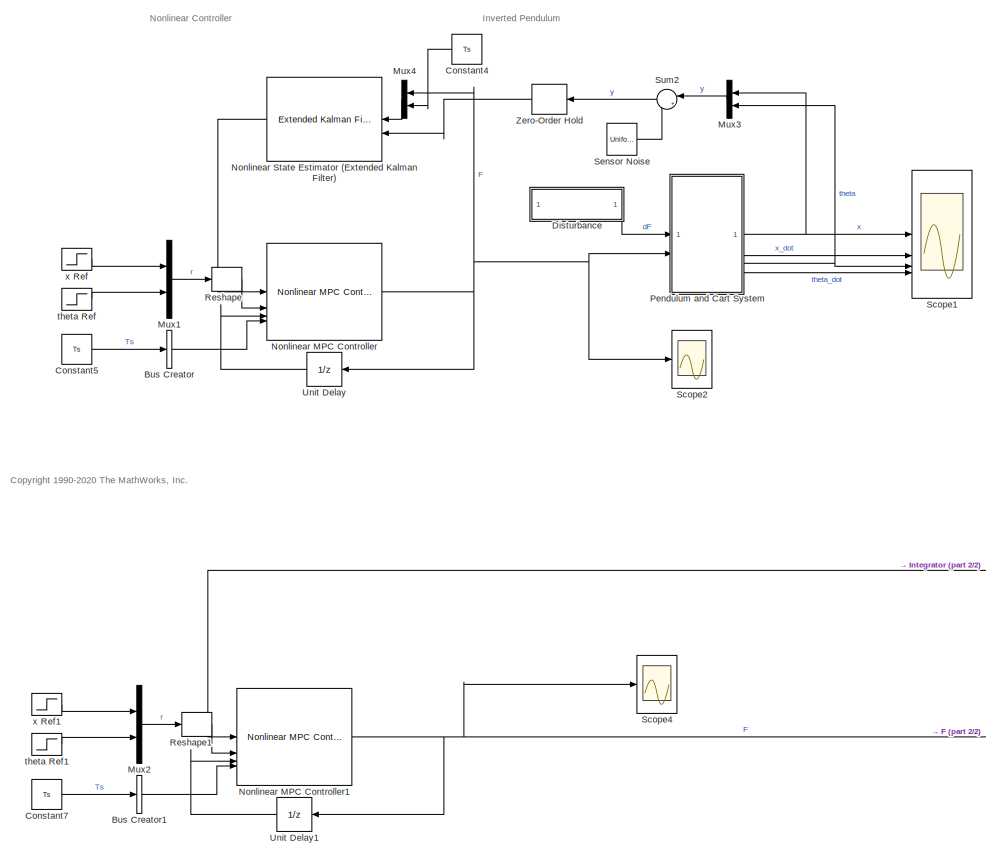
[diagram: root canvas - part 1/2, left side, full height]
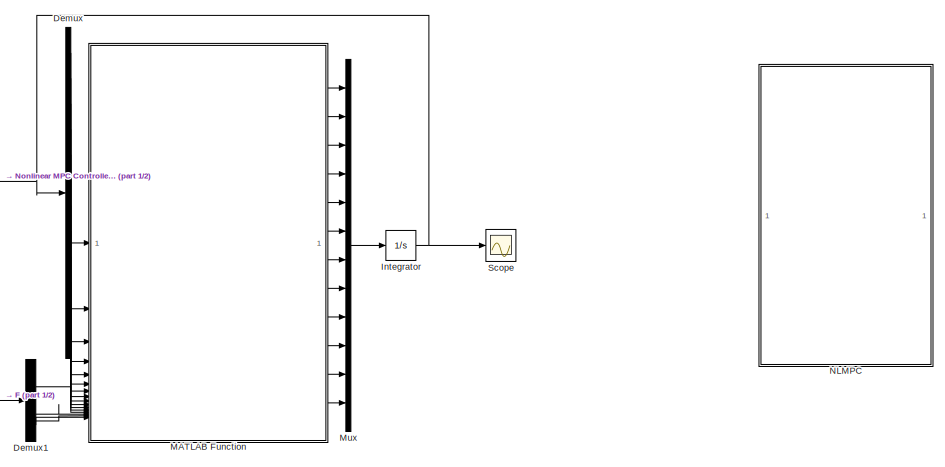
[diagram: root canvas - part 2/2, bottom right region]
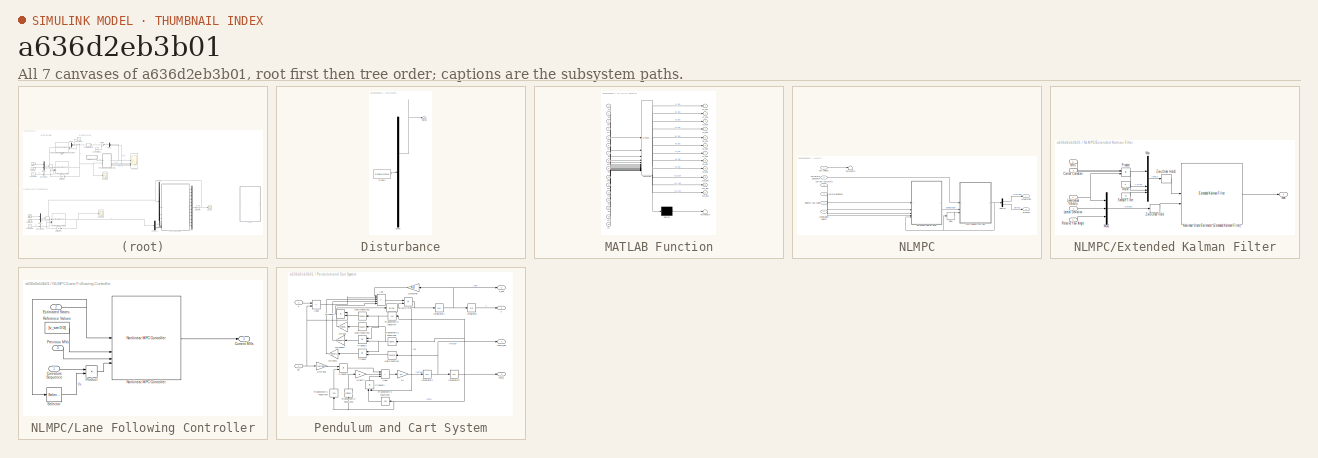
[diagram: thumbnail index - all 7 canvases of the model, root first then tree order]
MODEL slx_a636d2eb3b01
KIND model
CONFIG AbsTol = auto
CONFIG EnableMultiTasking = off
CONFIG FixedStep = auto
CONFIG MaxStep = auto
CONFIG MinStep = auto
CONFIG RelTol = 1e-3
CONFIG SampleTimeConstraint = Unconstrained
CONFIG SolverName = VariableStepAuto
CONFIG StartTime = 0.0
CONFIG StopTime = 10.0
BLOCK [BusCreator] Bus Creator
  DisplayOption = bar
  InheritFromInputs = off
  Inputs = 1
  NonVirtualBus = on
  OutDataTypeStr = Bus: myBusObject
BLOCK [BusCreator] Bus Creator1
  DisplayOption = bar
  InheritFromInputs = off
  Inputs = 1
  NonVirtualBus = on
  OutDataTypeStr = Bus: myBusObject
BLOCK [Constant] Constant4
  Value = Ts
BLOCK [Constant] Constant5
  Value = Ts
BLOCK [Constant] Constant7
  Value = Ts
BLOCK [Demux] Demux
  Outputs = 12
BLOCK [Demux] Demux1
BLOCK [SubSystem] Disturbance
  ClipboardFcn = sigbuilder_block('clipboard');
  CloseFcn = sigbuilder_block('close');
  ContinueFcn = sigbuilder_block('continue');
  CopyFcn = sigbuilder_block('copy');
  DeleteFcn = sigbuilder_block('delete');
  LoadFcn = sigbuilder_block('load');
  MaskHideContents = on
  ModelCloseFcn = sigbuilder_block('modelClose');
  NameChangeFcn = sigbuilder_block('namechange');
  NameLocation = top
  OpenFcn = sigbuilder_block('open',[237 156.75 551.25 355.5 ]);
  PauseFcn = sigbuilder_block('pause');
  PreSaveFcn = sigbuilder_block('preSave');
  StartFcn = sigbuilder_block('start');
  StopFcn = sigbuilder_block('stop');
  Tag = STV Subsys
BLOCK [Demux] Disturbance/Demux
  DisplayOption = none
  Outputs = 1
  Tag = STV Demux
BLOCK [FromWorkspace] Disturbance/FromWs
  Tag = STV FromWs
  VariableName = tuvar
BLOCK [Outport] Disturbance/Signal 1
  Tag = STV Outport
  VectorParamsAs1DForOutWhenUnconnected = off
BLOCK [Integrator] Integrator
  InitialCondition = [0;0;0;0;0;0;0;0;0;0;0;0]
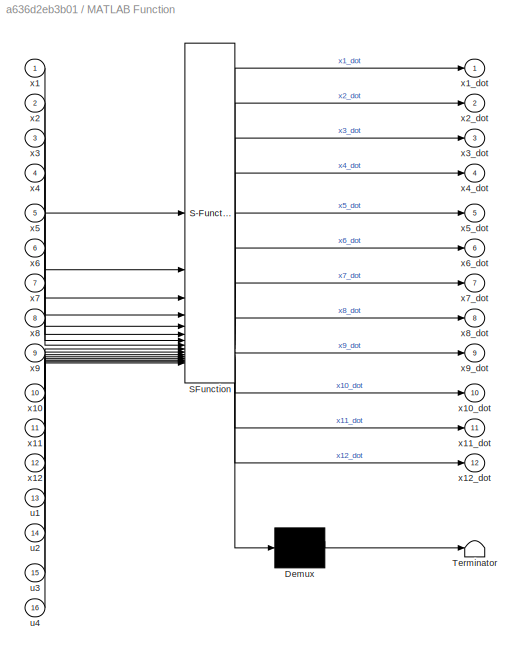
BLOCK [SubSystem] MATLAB Function
  ErrorFcn = Stateflow.Translate.translate
  PermitHierarchicalResolution = ExplicitOnly
  SFBlockType = MATLAB Function
  TreatAsAtomicUnit = on
BLOCK [Demux] MATLAB Function/ Demux 
  Outputs = 1
BLOCK [S-Function] MATLAB Function/ SFunction 
  EnableBusSupport = off
  FunctionName = sf_sfun
  PortCounts = [16 13]
  SFcnIsStateOwnerBlock = off
  SFunctionDeploymentMode = off
  Tag = Stateflow S-Function 2
BLOCK [Terminator] MATLAB Function/ Terminator 
BLOCK [Inport] MATLAB Function/u1
  Port = 13
BLOCK [Inport] MATLAB Function/u2
  Port = 14
BLOCK [Inport] MATLAB Function/u3
  Port = 15
BLOCK [Inport] MATLAB Function/u4
  Port = 16
BLOCK [Inport] MATLAB Function/x1
BLOCK [Inport] MATLAB Function/x10
  Port = 10
BLOCK [Outport] MATLAB Function/x10_dot
  Port = 10
BLOCK [Inport] MATLAB Function/x11
  Port = 11
BLOCK [Outport] MATLAB Function/x11_dot
  Port = 11
BLOCK [Inport] MATLAB Function/x12
  Port = 12
BLOCK [Outport] MATLAB Function/x12_dot
  Port = 12
BLOCK [Outport] MATLAB Function/x1_dot
BLOCK [Inport] MATLAB Function/x2
  Port = 2
BLOCK [Outport] MATLAB Function/x2_dot
  Port = 2
BLOCK [Inport] MATLAB Function/x3
  Port = 3
BLOCK [Outport] MATLAB Function/x3_dot
  Port = 3
BLOCK [Inport] MATLAB Function/x4
  Port = 4
BLOCK [Outport] MATLAB Function/x4_dot
  Port = 4
BLOCK [Inport] MATLAB Function/x5
  Port = 5
BLOCK [Outport] MATLAB Function/x5_dot
  Port = 5
BLOCK [Inport] MATLAB Function/x6
  Port = 6
BLOCK [Outport] MATLAB Function/x6_dot
  Port = 6
BLOCK [Inport] MATLAB Function/x7
  Port = 7
BLOCK [Outport] MATLAB Function/x7_dot
  Port = 7
BLOCK [Inport] MATLAB Function/x8
  Port = 8
BLOCK [Outport] MATLAB Function/x8_dot
  Port = 8
BLOCK [Inport] MATLAB Function/x9
  Port = 9
BLOCK [Outport] MATLAB Function/x9_dot
  Port = 9
BLOCK [Mux] Mux
  DisplayOption = bar
  Inputs = 12
BLOCK [Mux] Mux1
  DisplayOption = bar
  Inputs = 2
BLOCK [Mux] Mux2
  DisplayOption = bar
  Inputs = 2
BLOCK [Mux] Mux3
  DisplayOption = bar
  Inputs = 2
  NameLocation = top
BLOCK [Mux] Mux4
  DisplayOption = bar
  Inputs = 2
  NameLocation = top
BLOCK [SubSystem] NLMPC
  VariantControl = controller_type ==1
BLOCK [Outport] NLMPC/Acceleration
  VectorParamsAs1DForOutWhenUnconnected = off
BLOCK [Inport] NLMPC/Current Curvature
  Port = 3
BLOCK [Inport] NLMPC/Curvature Sequence
  Port = 2
BLOCK [Delay] NLMPC/Delay
  DelayLength = 1
  InitialCondition = [0.2 0.3]
  InputPortMap = u0
BLOCK [Demux] NLMPC/Demux
  Outputs = 2
BLOCK [SubSystem] NLMPC/Extended Kalman Filter
BLOCK [Inport] NLMPC/Extended Kalman Filter/Current Curvature
BLOCK [Inport] NLMPC/Extended Kalman Filter/Lateral Deviation
  Port = 2
BLOCK [Inport] NLMPC/Extended Kalman Filter/Longitudinal Velocity
  Port = 4
BLOCK [Inport] NLMPC/Extended Kalman Filter/MVs
  Port = 5
BLOCK [Mux] NLMPC/Extended Kalman Filter/Mux
  DisplayOption = bar
BLOCK [Mux] NLMPC/Extended Kalman Filter/Mux1
  DisplayOption = bar
  Inputs = 3
BLOCK [Constant] NLMPC/Extended Kalman Filter/Noise
  Value = 0
BLOCK [Reference] NLMPC/Extended Kalman Filter/Nonlinear State Estimator (Extended Kalman Filter)  REF=sharedTrackingLibrary/Extended Kalman Filter
  NameLocation = top
  SourceBlock = sharedTrackingLibrary/Extended Kalman Filter
  SourceType = Extended Kalman Filter
BLOCK [Product] NLMPC/Extended Kalman Filter/Product
BLOCK [Inport] NLMPC/Extended Kalman Filter/Relative Yaw Angle
  Port = 3
BLOCK [Constant] NLMPC/Extended Kalman Filter/Sample Time
  Value = Ts
BLOCK [ZeroOrderHold] NLMPC/Extended Kalman Filter/Zero-Order Hold
  NameLocation = top
  SampleTime = Ts
BLOCK [ZeroOrderHold] NLMPC/Extended Kalman Filter/Zero-Order Hold1
  NameLocation = top
  SampleTime = Ts
BLOCK [Outport] NLMPC/Extended Kalman Filter/xhat
  VectorParamsAs1DForOutWhenUnconnected = off
BLOCK [SubSystem] NLMPC/Lane Following Controller
BLOCK [Outport] NLMPC/Lane Following Controller/Current MVs
  VectorParamsAs1DForOutWhenUnconnected = off
BLOCK [Inport] NLMPC/Lane Following Controller/Curvature Sequence
BLOCK [Inport] NLMPC/Lane Following Controller/Estimated States
  Port = 2
BLOCK [Reference] NLMPC/Lane Following Controller/Nonlinear MPC Controller  REF=mpclib/Nonlinear MPC Controller  (lib defined in mdl_ae329e0e0455)
  SCDEnableBlockLinearizationSpecification = on
  SourceBlock = mpclib/Nonlinear MPC Controller
  SourceType = NonlinearMPC
BLOCK [Inport] NLMPC/Lane Following Controller/Previous MVs
  Port = 3
BLOCK [Product] NLMPC/Lane Following Controller/Product
BLOCK [Constant] NLMPC/Lane Following Controller/Reference Values
  Value = [v_set 0 0]
  VectorParams1D = off
BLOCK [Selector] NLMPC/Lane Following Controller/Selector
  IndexOptions = Index vector (dialog)
  Indices = [3]
  InputPortWidth = 7
  OutputSizes = 1
BLOCK [Inport] NLMPC/Lateral Deviation
  Port = 4
BLOCK [Inport] NLMPC/Longitudinal Velocity
  Port = 6
BLOCK [Inport] NLMPC/Relative Yaw Angle
  Port = 5
BLOCK [Inport] NLMPC/Set velocity
BLOCK [Outport] NLMPC/Steering
  Port = 2
  VectorParamsAs1DForOutWhenUnconnected = off
BLOCK [Terminator] NLMPC/Terminator
BLOCK [Reference] Nonlinear MPC Controller  REF=mpclib/Nonlinear MPC Controller  (lib defined in mdl_ae329e0e0455)
  SCDEnableBlockLinearizationSpecification = on
  SourceBlock = mpclib/Nonlinear MPC Controller
  SourceType = NonlinearMPC
BLOCK [Reference] Nonlinear MPC Controller1  REF=mpclib/Nonlinear MPC Controller  (lib defined in mdl_ae329e0e0455)
  SCDEnableBlockLinearizationSpecification = on
  SourceBlock = mpclib/Nonlinear MPC Controller
  SourceType = NonlinearMPC
BLOCK [Reference] Nonlinear State Estimator (Extended Kalman Filter)  REF=sharedTrackingLibrary/Extended Kalman Filter
  SourceBlock = sharedTrackingLibrary/Extended Kalman Filter
  SourceType = Extended Kalman Filter
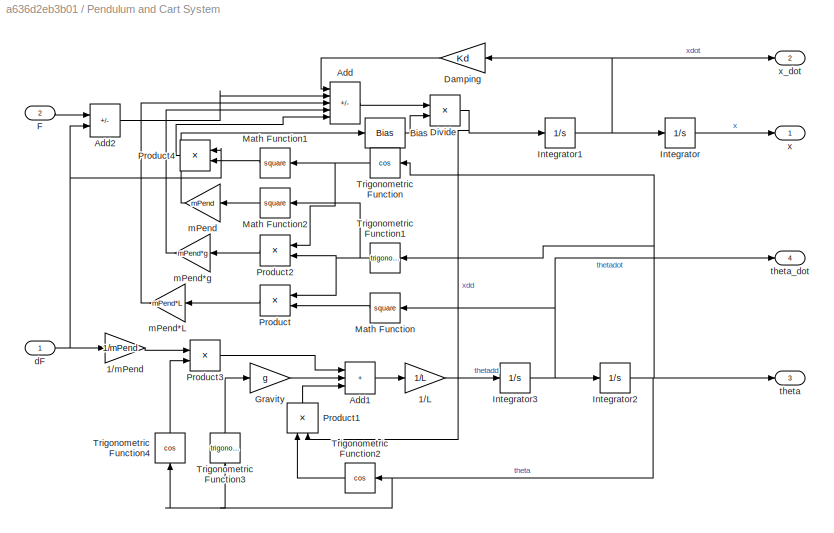
BLOCK [SubSystem] Pendulum and Cart System
BLOCK [Gain] Pendulum and Cart System/1//L
  Gain = 1/L
BLOCK [Gain] Pendulum and Cart System/1//mPend
  Gain = 1/mPend
  NameLocation = top
BLOCK [Sum] Pendulum and Cart System/Add
  IconShape = rectangular
  Inputs = -+-++
BLOCK [Sum] Pendulum and Cart System/Add1
  IconShape = rectangular
  Inputs = +++
BLOCK [Sum] Pendulum and Cart System/Add2
  IconShape = rectangular
  Inputs = +-
BLOCK [Bias] Pendulum and Cart System/Bias
  Bias = mCart
  SaturateOnIntegerOverflow = off
BLOCK [Gain] Pendulum and Cart System/Damping
  Gain = Kd
  NameLocation = top
BLOCK [Product] Pendulum and Cart System/Divide
  Inputs = */
BLOCK [Inport] Pendulum and Cart System/F
  Port = 2
BLOCK [Gain] Pendulum and Cart System/Gravity
  Gain = g
BLOCK [Integrator] Pendulum and Cart System/Integrator
  ContinuousStateAttributes = 'x'
  InitialCondition = x0
BLOCK [Integrator] Pendulum and Cart System/Integrator1
  ContinuousStateAttributes = 'xdot'
BLOCK [Integrator] Pendulum and Cart System/Integrator2
  ContinuousStateAttributes = 'theta'
  InitialCondition = theta0
BLOCK [Integrator] Pendulum and Cart System/Integrator3
  ContinuousStateAttributes = 'thetadot'
BLOCK [Math] Pendulum and Cart System/Math Function
  Operator = square
  SignedPower = on
BLOCK [Math] Pendulum and Cart System/Math Function1
  Operator = square
  SignedPower = on
BLOCK [Math] Pendulum and Cart System/Math Function2
  Operator = square
  SignedPower = on
BLOCK [Product] Pendulum and Cart System/Product
  NameLocation = top
BLOCK [Product] Pendulum and Cart System/Product1
  NameLocation = right
BLOCK [Product] Pendulum and Cart System/Product2
  NameLocation = top
BLOCK [Product] Pendulum and Cart System/Product3
BLOCK [Product] Pendulum and Cart System/Product4
  NameLocation = top
BLOCK [Trigonometry] Pendulum and Cart System/Trigonometric Function
  NameLocation = top
  Operator = cos
BLOCK [Trigonometry] Pendulum and Cart System/Trigonometric Function1
  NameLocation = top
BLOCK [Trigonometry] Pendulum and Cart System/Trigonometric Function2
  NameLocation = top
  Operator = cos
BLOCK [Trigonometry] Pendulum and Cart System/Trigonometric Function3
  NameLocation = right
BLOCK [Trigonometry] Pendulum and Cart System/Trigonometric Function4
  NameLocation = right
  Operator = cos
BLOCK [Inport] Pendulum and Cart System/dF
BLOCK [Gain] Pendulum and Cart System/mPend
  Gain = mPend
BLOCK [Gain] Pendulum and Cart System/mPend*L
  Gain = mPend*L
BLOCK [Gain] Pendulum and Cart System/mPend*g
  Gain = mPend*g
BLOCK [Outport] Pendulum and Cart System/theta
  Port = 3
  VectorParamsAs1DForOutWhenUnconnected = off
BLOCK [Outport] Pendulum and Cart System/theta_dot
  Port = 4
  VectorParamsAs1DForOutWhenUnconnected = off
BLOCK [Outport] Pendulum and Cart System/x
  VectorParamsAs1DForOutWhenUnconnected = off
BLOCK [Outport] Pendulum and Cart System/x_dot
  Port = 2
  VectorParamsAs1DForOutWhenUnconnected = off
BLOCK [Reshape] Reshape
  OutputDimensionality = Row vector (2-D)
BLOCK [Reshape] Reshape1
  OutputDimensionality = Row vector (2-D)
BLOCK [Scope] Scope
  Floating = off
  NumInputPorts = 1
  ScopeSpecificationString = Simulink.scopes.TimeScopeBlockCfg('CurrentConfiguration', extmgr.ConfigurationSet(extmgr.Configuration('Core','General UI',true),extmgr.Configuration('Core','Source UI',true),extmgr.Configuration('Sources','WiredSimulink',true),extmgr.Configuration('Visuals','Time Domain',true,'SerializedDisplays',{struct('MinYLimReal','-439.3125','MaxYLimReal','48.8125','YLabelReal','','MinYLimMag',' 0.00000','Ma...<+1560ch>
BLOCK [Scope] Scope1
  Floating = off
  NameLocation = top
  NumInputPorts = 4
  ScopeSpecificationString = Simulink.scopes.TimeScopeBlockCfg('CurrentConfiguration', extmgr.ConfigurationSet(extmgr.Configuration('Core','General UI',true),extmgr.Configuration('Core','Source UI',true),extmgr.Configuration('Sources','WiredSimulink',true,'DataLoggingSaveFormat','StructureWithTime','DataLoggingDecimation','1','DataLoggingDecimateData',true,'DataLoggingVariableName','ScopeData1'),extmgr.Configuration('Visuals'...<+3634ch>
BLOCK [Scope] Scope2
  Floating = off
  NameLocation = top
  NumInputPorts = 1
  ScopeSpecificationString = Simulink.scopes.TimeScopeBlockCfg('CurrentConfiguration', extmgr.ConfigurationSet(extmgr.Configuration('Core','General UI',true),extmgr.Configuration('Core','Source UI',true),extmgr.Configuration('Sources','WiredSimulink',true,'DataLoggingSaveFormat','StructureWithTime','DataLoggingDecimation','1','DataLoggingVariableName','ScopeData2'),extmgr.Configuration('Visuals','Time Domain',true,'Serialized...<+1540ch>
BLOCK [Scope] Scope4
  Floating = off
  NameLocation = top
  NumInputPorts = 1
  ScopeSpecificationString = Simulink.scopes.TimeScopeBlockCfg('CurrentConfiguration', extmgr.ConfigurationSet(extmgr.Configuration('Core','General UI',true),extmgr.Configuration('Core','Source UI',true),extmgr.Configuration('Sources','WiredSimulink',true,'DataLoggingSaveFormat','StructureWithTime','DataLoggingDecimation','1','DataLoggingVariableName','ScopeData4'),extmgr.Configuration('Visuals','Time Domain',true,'Serialized...<+1540ch>
BLOCK [UniformRandomNumber] Sensor Noise
  Maximum = 0.01
  Minimum = -0.01
  SampleTime = Ts
BLOCK [Sum] Sum2
  Inputs = |++
BLOCK [UnitDelay] Unit Delay
  HasFrameUpgradeWarning = on
  SampleTime = -1
BLOCK [UnitDelay] Unit Delay1
  HasFrameUpgradeWarning = on
  SampleTime = -1
BLOCK [ZeroOrderHold] Zero-Order Hold
  SampleTime = Ts
BLOCK [Step] theta Ref
  After = 0
  Before = -pi
  SampleTime = 0
BLOCK [Step] theta Ref1
  After = 0
  Before = -pi
  SampleTime = 0
BLOCK [Step] x Ref
  After = 5
  SampleTime = 0
  Time = 10
BLOCK [Step] x Ref1
  After = 5
  SampleTime = 0
  Time = 10
ANNOTATION (root): <copyright redacted>
ANNOTATION (root): Inverted Pendulum
ANNOTATION (root): Nonlinear Controller
LINE Bus Creator1:1 -> Nonlinear MPC Controller1:4
LINE Bus Creator:1 -> Nonlinear MPC Controller:4
LINE Constant4:1 -> Mux4:2
LINE Constant5:1 -> Bus Creator:1
LINE Constant7:1 -> Bus Creator1:1
LINE Demux1:1 -> MATLAB Function:13
LINE Demux1:2 -> MATLAB Function:14
LINE Demux1:3 -> MATLAB Function:15
LINE Demux1:4 -> MATLAB Function:16
LINE Demux:1 -> MATLAB Function:1
LINE Demux:10 -> MATLAB Function:10
LINE Demux:11 -> MATLAB Function:11
LINE Demux:12 -> MATLAB Function:12
LINE Demux:2 -> MATLAB Function:2
LINE Demux:3 -> MATLAB Function:3
LINE Demux:4 -> MATLAB Function:4
LINE Demux:5 -> MATLAB Function:5
LINE Demux:6 -> MATLAB Function:6
LINE Demux:7 -> MATLAB Function:7
LINE Demux:8 -> MATLAB Function:8
LINE Demux:9 -> MATLAB Function:9
LINE Disturbance:1 -> Pendulum and Cart System:1
NET Integrator:1 -> Demux:1, Nonlinear MPC Controller1:1, Scope:1
LINE MATLAB Function:1 -> Mux:1
LINE MATLAB Function:10 -> Mux:10
LINE MATLAB Function:11 -> Mux:11
LINE MATLAB Function:12 -> Mux:12
LINE MATLAB Function:2 -> Mux:2
LINE MATLAB Function:3 -> Mux:3
LINE MATLAB Function:4 -> Mux:4
LINE MATLAB Function:5 -> Mux:5
LINE MATLAB Function:6 -> Mux:6
LINE MATLAB Function:7 -> Mux:7
LINE MATLAB Function:8 -> Mux:8
LINE MATLAB Function:9 -> Mux:9
LINE Mux1:1 -> Reshape:1
LINE Mux2:1 -> Reshape1:1
LINE Mux3:1 -> Sum2:1
LINE Mux4:1 -> Nonlinear State Estimator (Extended Kalman Filter):1
LINE Mux:1 -> Integrator:1
LINE NLMPC/Current Curvature:1 -> NLMPC/Extended Kalman Filter:1
LINE NLMPC/Curvature Sequence:1 -> NLMPC/Lane Following Controller:1
LINE NLMPC/Delay:1 -> NLMPC/Lane Following Controller:3
LINE NLMPC/Demux:1 -> NLMPC/Acceleration:1
LINE NLMPC/Demux:2 -> NLMPC/Steering:1
LINE NLMPC/Extended Kalman Filter/Current Curvature:1 -> NLMPC/Extended Kalman Filter/Product:1
LINE NLMPC/Extended Kalman Filter/Lateral Deviation:1 -> NLMPC/Extended Kalman Filter/Mux1:2
NET NLMPC/Extended Kalman Filter/Longitudinal Velocity:1 -> NLMPC/Extended Kalman Filter/Mux1:1, NLMPC/Extended Kalman Filter/Product:2
LINE NLMPC/Extended Kalman Filter/MVs:1 -> NLMPC/Extended Kalman Filter/Mux:1
LINE NLMPC/Extended Kalman Filter/Mux1:1 -> NLMPC/Extended Kalman Filter/Zero-Order Hold:1
LINE NLMPC/Extended Kalman Filter/Mux:1 -> NLMPC/Extended Kalman Filter/Zero-Order Hold1:1
LINE NLMPC/Extended Kalman Filter/Noise:1 -> NLMPC/Extended Kalman Filter/Mux:3
LINE NLMPC/Extended Kalman Filter/Nonlinear State Estimator (Extended Kalman Filter):1 -> NLMPC/Extended Kalman Filter/xhat:1
LINE NLMPC/Extended Kalman Filter/Product:1 -> NLMPC/Extended Kalman Filter/Mux:2
LINE NLMPC/Extended Kalman Filter/Relative Yaw Angle:1 -> NLMPC/Extended Kalman Filter/Mux1:3
LINE NLMPC/Extended Kalman Filter/Sample Time:1 -> NLMPC/Extended Kalman Filter/Mux:4
LINE NLMPC/Extended Kalman Filter/Zero-Order Hold1:1 -> NLMPC/Extended Kalman Filter/Nonlinear State Estimator (Extended Kalman Filter):1
LINE NLMPC/Extended Kalman Filter/Zero-Order Hold:1 -> NLMPC/Extended Kalman Filter/Nonlinear State Estimator (Extended Kalman Filter):2
LINE NLMPC/Extended Kalman Filter:1 -> NLMPC/Lane Following Controller:2
LINE NLMPC/Lane Following Controller/Curvature Sequence:1 -> NLMPC/Lane Following Controller/Product:1
NET NLMPC/Lane Following Controller/Estimated States:1 -> NLMPC/Lane Following Controller/Nonlinear MPC Controller:1, NLMPC/Lane Following Controller/Selector:1
LINE NLMPC/Lane Following Controller/Nonlinear MPC Controller:1 -> NLMPC/Lane Following Controller/Current MVs:1
LINE NLMPC/Lane Following Controller/Previous MVs:1 -> NLMPC/Lane Following Controller/Nonlinear MPC Controller:3
LINE NLMPC/Lane Following Controller/Product:1 -> NLMPC/Lane Following Controller/Nonlinear MPC Controller:4
LINE NLMPC/Lane Following Controller/Reference Values:1 -> NLMPC/Lane Following Controller/Nonlinear MPC Controller:2
LINE NLMPC/Lane Following Controller/Selector:1 -> NLMPC/Lane Following Controller/Product:2
NET NLMPC/Lane Following Controller:1 -> NLMPC/Delay:1, NLMPC/Demux:1, NLMPC/Extended Kalman Filter:5
LINE NLMPC/Lateral Deviation:1 -> NLMPC/Extended Kalman Filter:2
LINE NLMPC/Longitudinal Velocity:1 -> NLMPC/Extended Kalman Filter:4
LINE NLMPC/Relative Yaw Angle:1 -> NLMPC/Extended Kalman Filter:3
LINE NLMPC/Set velocity:1 -> NLMPC/Terminator:1
NET Nonlinear MPC Controller1:1 -> Demux1:1, Scope4:1, Unit Delay1:1
NET Nonlinear MPC Controller:1 -> Mux4:1, Pendulum and Cart System:2, Scope2:1, Unit Delay:1
LINE Nonlinear State Estimator (Extended Kalman Filter):1 -> Nonlinear MPC Controller:1
LINE Pendulum and Cart System/1//L:1 -> Pendulum and Cart System/Integrator3:1
LINE Pendulum and Cart System/1//mPend:1 -> Pendulum and Cart System/Product3:1
LINE Pendulum and Cart System/Add1:1 -> Pendulum and Cart System/1//L:1
LINE Pendulum and Cart System/Add2:1 -> Pendulum and Cart System/Add:2
LINE Pendulum and Cart System/Add:1 -> Pendulum and Cart System/Divide:1
LINE Pendulum and Cart System/Bias:1 -> Pendulum and Cart System/Divide:2
LINE Pendulum and Cart System/Damping:1 -> Pendulum and Cart System/Add:1
NET Pendulum and Cart System/Divide:1 -> Pendulum and Cart System/Integrator1:1, Pendulum and Cart System/Product1:2
LINE Pendulum and Cart System/F:1 -> Pendulum and Cart System/Add2:1
LINE Pendulum and Cart System/Gravity:1 -> Pendulum and Cart System/Add1:2
NET Pendulum and Cart System/Integrator1:1 -> Pendulum and Cart System/Damping:1, Pendulum and Cart System/Integrator:1, Pendulum and Cart System/x_dot:1
NET Pendulum and Cart System/Integrator2:1 -> Pendulum and Cart System/Trigonometric Function1:1, Pendulum and Cart System/Trigonometric Function2:1, Pendulum and Cart System/Trigonometric Function3:1, Pendulum and Cart System/Trigonometric Function4:1, Pendulum and Cart System/Trigonometric Function:1, Pendulum and Cart System/theta:1
NET Pendulum and Cart System/Integrator3:1 -> Pendulum and Cart System/Integrator2:1, Pendulum and Cart System/Math Function:1, Pendulum and Cart System/theta_dot:1
LINE Pendulum and Cart System/Integrator:1 -> Pendulum and Cart System/x:1
LINE Pendulum and Cart System/Math Function1:1 -> Pendulum and Cart System/Product4:2
LINE Pendulum and Cart System/Math Function2:1 -> Pendulum and Cart System/mPend:1
LINE Pendulum and Cart System/Math Function:1 -> Pendulum and Cart System/Product:2
LINE Pendulum and Cart System/Product1:1 -> Pendulum and Cart System/Add1:3
LINE Pendulum and Cart System/Product2:1 -> Pendulum and Cart System/mPend*g:1
LINE Pendulum and Cart System/Product3:1 -> Pendulum and Cart System/Add1:1
LINE Pendulum and Cart System/Product4:1 -> Pendulum and Cart System/Add:5
LINE Pendulum and Cart System/Product:1 -> Pendulum and Cart System/mPend*L:1
NET Pendulum and Cart System/Trigonometric Function1:1 -> Pendulum and Cart System/Math Function2:1, Pendulum and Cart System/Product2:2, Pendulum and Cart System/Product:1
LINE Pendulum and Cart System/Trigonometric Function2:1 -> Pendulum and Cart System/Product1:1
LINE Pendulum and Cart System/Trigonometric Function3:1 -> Pendulum and Cart System/Gravity:1
LINE Pendulum and Cart System/Trigonometric Function4:1 -> Pendulum and Cart System/Product3:2
NET Pendulum and Cart System/Trigonometric Function:1 -> Pendulum and Cart System/Math Function1:1, Pendulum and Cart System/Product2:1
NET Pendulum and Cart System/dF:1 -> Pendulum and Cart System/1//mPend:1, Pendulum and Cart System/Add2:2, Pendulum and Cart System/Product4:1
LINE Pendulum and Cart System/mPend*L:1 -> Pendulum and Cart System/Add:3
LINE Pendulum and Cart System/mPend*g:1 -> Pendulum and Cart System/Add:4
LINE Pendulum and Cart System/mPend:1 -> Pendulum and Cart System/Bias:1
NET Pendulum and Cart System:1 -> Mux3:1, Scope1:1
LINE Pendulum and Cart System:2 -> Scope1:2
NET Pendulum and Cart System:3 -> Mux3:2, Scope1:3
LINE Pendulum and Cart System:4 -> Scope1:4
LINE Reshape1:1 -> Nonlinear MPC Controller1:2
LINE Reshape:1 -> Nonlinear MPC Controller:2
LINE Sensor Noise:1 -> Sum2:2
LINE Sum2:1 -> Zero-Order Hold:1
LINE Unit Delay1:1 -> Nonlinear MPC Controller1:3
LINE Unit Delay:1 -> Nonlinear MPC Controller:3
LINE Zero-Order Hold:1 -> Nonlinear State Estimator (Extended Kalman Filter):2
LINE theta Ref1:1 -> Mux2:2
LINE theta Ref:1 -> Mux1:2
LINE x Ref1:1 -> Mux2:1
LINE x Ref:1 -> Mux1:1
note: NET lines group one-source signal fan-out (src -> all destinations, sorted); 1:1 wires keep LINE
CHART MATLAB Function states=1 transitions=1
  STATE_LABEL 'eML_blk_kernel()'
  STATE_LABEL 'SCRIPT:\nfunction [x1_dot,x2_dot,x3_dot,x4_dot,x5_dot,x6_dot,x7_dot,x8_dot,x9_dot,x10_dot,x11_dot,x12_dot]= fcn(x1,x2,x3,x4,x5,x6,x7,x8,x9,x10,x11,x12,u1,u2,u3,u4)\n% x=x1;\n% y=x2,\n% z=x3\n% phi=x4;\n% theta=x5;\n% sai=x6;\n% x_dot=x7;\n% y_dot=x8,\n% z_dot=x9\n% phi_dot=x10;\n% theta_dot=x11;\n% sai_dot=x12;\n\nIxx= 1.2; \nIyy= 1.2;\nIzz= 2.3;\nk= 1;\nl= 0.25;\nm= 2;\nb= 0.2;\ng= 9.81;\n\nT = k*(u1+u2+u3+u4);\nx789= -g...<+1422ch>'
CHART  states=0 transitions=0
